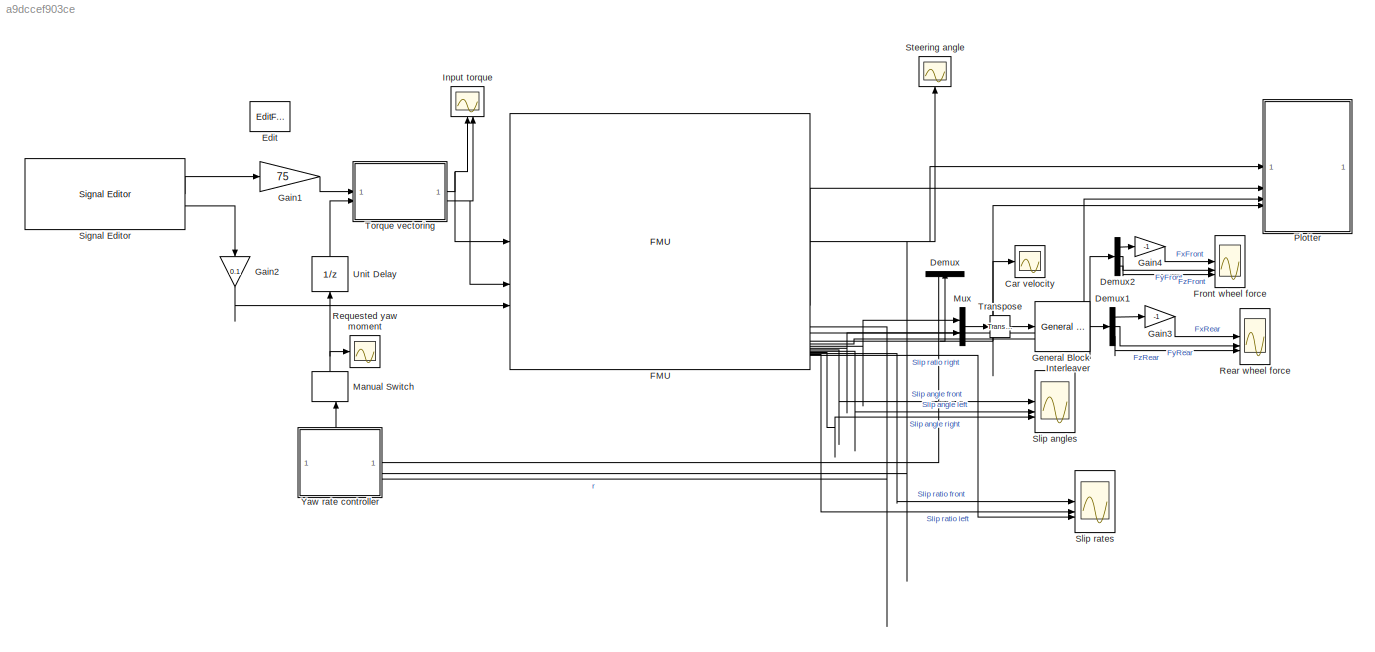
MODEL slx_a9dccef903ce
KIND model
CONFIG AbsTol = auto
CONFIG EnableMultiTasking = off
CONFIG FixedStep = auto
CONFIG MaxStep = auto
CONFIG MinStep = auto
CONFIG RelTol = 1e-3
CONFIG SampleTimeConstraint = Unconstrained
CONFIG SolverName = VariableStepAuto
CONFIG StartTime = 0.0
CONFIG StopTime = 25
BLOCK [Scope] Car velocity
  Floating = off
  NumInputPorts = 1
  ScopeSpecificationString = Simulink.scopes.TimeScopeBlockCfg('CurrentConfiguration', extmgr.ConfigurationSet(extmgr.Configuration('Core','General UI',true),extmgr.Configuration('Core','Source UI',true),extmgr.Configuration('Sources','WiredSimulink',true,'DataLoggingVariableName','ScopeData2'),extmgr.Configuration('Visuals','Time Domain',true,'SerializedDisplays',{struct('MinYLimReal','-15.53209','MaxYLimReal','25.33957','YL...<+1442ch>
BLOCK [Demux] Demux
  NameLocation = left
  Outputs = 2
BLOCK [Demux] Demux1
  Outputs = 3
BLOCK [Demux] Demux2
  Outputs = 3
BLOCK [EditField] Edit
  Alignment = Center
  AttributesFormatString = Initial speed
  LabelPosition = Hide
  ShowInitialText = on
BLOCK [FMU] FMU
  FMUCachedDialogLayout = {"Geometry":[468,174,698,530],"ParameterColumnsWidthConfig":"{\"columns\":[{\"name\":\"Parameter\",\"width\":352},{\"name\":\"Value\",\"width\":296},{\"name\":\"Unit\",\"width\":281},{\"name\":\"Description\",\"width\":366}]}","InputColumnsWidthConfig":[],"OutputColumnsWidthConfig":"{\"columns\":[{\"name\":\"Name\",\"width\":287},{\"name\":\"Visibility\",\"width\":79},{\"name\":\"Start\",\"width\"...<+84ch>
  FMUInitializeEnumObject = off
  FMUMode = ModelExchange
  FMUName = ThreeWheelVehicle3FMU.fmu
  MaskDisplay = disp('ThreeWheelVehicle3FMU');\nport_label('output',1,'outActualSteeringAngle');\nport_label('output',2,'outCarAcc');\nport_label('output',3,'outCarAngle');\nport_label('output',4,'outCarAngularAcc');\nport_label('output',5,'outCarAngularVelocity');\nport_label('output',6,'outCarPosition');\nport_label('output',7,'outCarSpeed');\nport_label('output',8,'outCarVelocity');\nport_label('output',9,'outForceFron...<+498ch>
  MaskPromptString = airResistanceLongitudinal|backLengthm|body2|c_rollFRolling resistance|c_rollLRolling resistance|c_rollRRolling resistance|dragCoefAir drag coefficient|front|front2|frontLengthm|frontTrail|frontWheel|gm/s2 Gravity|gearRatio|inertiaBodykgm2|inertiaWheelF|inertiaWheelL|inertiaWheelR|masskg|massCenterZm height to COM|muAF|muAL|muAR|muSF|muSL|muSR|neg|neg2|planarWorld|positionPhi|rear|rearLeft|rearLeft...<+2735ch>
  MaskType = ThreeWheelVehicle3FMU [Model Exchange, v2.0]
  MultithreadedSim = off
  airResistanceLongitudinal = struct('r',[0.0,1.0],'rho',1.18)
  backLength = Lr
  body2 = struct('I',1e-08,'m',0.1)
  body2_sphere_shapeType = sphere
  body_sphere_shapeType = sphere
  c_rollF = rollResF
  c_rollL = rollResL
  c_rollR = rollResR
  dragCoef = dragCoeff
  front = struct('r',[0.0],'width',0.2)
  front2 = struct('r',[1e-10,0.0])
  front2_cylinder_shapeType = cylinder
  frontLength = Lf
  frontTrail = struct('r',[0.0,-0.1])
  frontTrail_cylinder_shapeType = cylinder
  frontWheel = struct('diameter',0.1,'r',[0.0,1.0],'v0_roll',0.1)
  frontWheel_cylinder_shapeType = cylinder
  frontWheel_rim1_shapeType = cylinder
  frontWheel_rim2_shapeType = cylinder
  front_cylinder_shapeType = cylinder
  g = g
  gearRatio = gearRatio
  inertiaBody = Izz
  inertiaWheelF = inertiaF
  inertiaWheelL = inertiaL
  inertiaWheelR = inertiaR
  mass = mass
  massCenterZ = h
  muAF = muAF
  muAL = muAL
  muAR = muAR
  muSF = muSF
  muSL = muSL
  muSR = muSR
  neg = struct('k',-1.0)
  neg2 = struct('k',-1.0)
  planarWorld = struct('constantGravity',[0.0,0.0],'defaultFrameDiameterFraction',40.0,'defaultN_to_m',1000.0,'defaultNm_to_m',1000.0,'defaultSpecularCoefficient',0.7,'defaultWidthFraction',20.0,'defaultZPosition',0.0,'gravityArrowTail',[0.0,0.0],'nominalLength',1.0)
  planarWorld_label1 = x
  planarWorld_label2 = y
  positionPhi = struct('f_crit',50.0)
  rear = struct('r',[0.0],'width',0.2)
  rearLeft = struct('r',[0,0.0])
  rearLeftWheel = struct('diameter',0.1,'r',[0.0,1.0],'v0_roll',0.1)
  rearLeftWheel_cylinder_shapeType = cylinder
  rearLeftWheel_rim1_shapeType = cylinder
  rearLeftWheel_rim2_shapeType = cylinder
  rearLeft_cylinder_shapeType = cylinder
  rearRight = struct('r',[0,0.0])
  rearRightWheel = struct('diameter',0.1,'r',[0.0,1.0],'v0_roll',0.1)
  rearRightWheel_cylinder_shapeType = cylinder
  rearRightWheel_rim1_shapeType = cylinder
  rearRightWheel_rim2_shapeType = cylinder
  rearRight_cylinder_shapeType = cylinder
  rear_cylinder_shapeType = cylinder
  revolute_cylinder_shapeType = cylinder
  sAdF = sAdF
  sAdL = sAdL
  sAdR = sAdR
  sSlF = sSlF
  sSlL = sSlL
  sSlR = sSlR
  speedStart = 1
  turnRadiusMAX = 1000.0
  vAdF = vAdF
  vAdL = vAdL
  vAdR = vAdR
  vSlF = vSlF
  vSlL = vSlL
  vSlR = vSlR
  vehicleFrontArea = 1.5
  vehicleWidth = rearTrackWidth
  wheelRadiusF = wheelRadiusF
  wheelRadiusL = wheelRadiusL
  wheelRadiusR = wheelRadiusR
BLOCK [Scope] Front wheel force
  Floating = off
  NumInputPorts = 3
  ScopeSpecificationString = Simulink.scopes.TimeScopeBlockCfg('CurrentConfiguration', extmgr.ConfigurationSet(extmgr.Configuration('Core','General UI',true),extmgr.Configuration('Core','Source UI',true),extmgr.Configuration('Sources','WiredSimulink',true,'DataLoggingVariableName','ScopeData3'),extmgr.Configuration('Visuals','Time Domain',true,'SerializedDisplays',{struct('MinYLimReal','-37.12635','MaxYLimReal','4.12515','YLa...<+2761ch>
BLOCK [Gain] Gain1
  Gain = 75
BLOCK [Gain] Gain2
  Gain = 0.1
  NameLocation = left
BLOCK [Gain] Gain3
  Gain = -1
BLOCK [Gain] Gain4
  Gain = -1
BLOCK [Reference] General Block Interleaver  REF=commblkintrlv2/General Block
Interleaver
  SourceBlock = commblkintrlv2/General Block\nInterleaver
  SourceType = General Block Interleaver
  StatePerturbationForJacobian = 1.0e-05
BLOCK [Scope] Input torque
  Floating = off
  NameLocation = right
  NumInputPorts = 2
  ScopeSpecificationString = Simulink.scopes.TimeScopeBlockCfg('CurrentConfiguration', extmgr.ConfigurationSet(extmgr.Configuration('Core','General UI',true),extmgr.Configuration('Core','Source UI',true),extmgr.Configuration('Sources','WiredSimulink',true,'DataLoggingVariableName','ScopeData1'),extmgr.Configuration('Visuals','Time Domain',true,'SerializedDisplays',{struct('MinYLimReal','-12.06915','MaxYLimReal','32.06915','YL...<+1467ch>
BLOCK [ManualSwitch] Manual Switch
  NameLocation = right
BLOCK [Mux] Mux
  DisplayOption = bar
  Inputs = 2
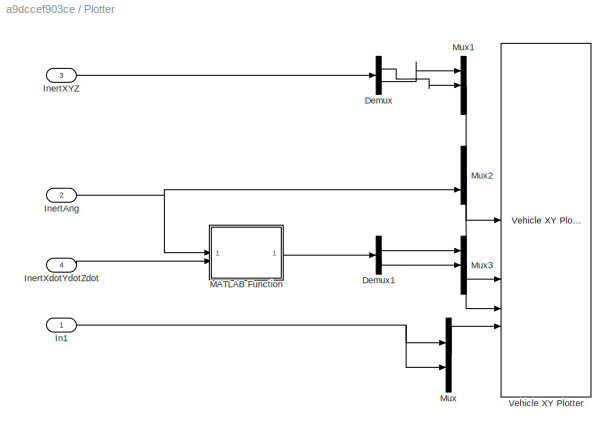
BLOCK [SubSystem] Plotter
BLOCK [Demux] Plotter/Demux
  Outputs = 2
BLOCK [Demux] Plotter/Demux1
  Outputs = 2
BLOCK [Inport] Plotter/In1
BLOCK [Inport] Plotter/InertAng
  Port = 2
BLOCK [Inport] Plotter/InertXYZ
  NameLocation = top
  Port = 3
BLOCK [Inport] Plotter/InertXdotYdotZdot
  Port = 4
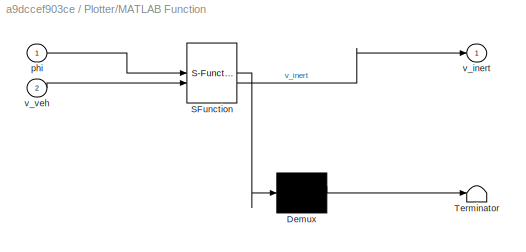
BLOCK [SubSystem] Plotter/MATLAB Function
  ErrorFcn = Stateflow.Translate.translate
  PermitHierarchicalResolution = ExplicitOnly
  SFBlockType = MATLAB Function
  TreatAsAtomicUnit = on
BLOCK [Demux] Plotter/MATLAB Function/ Demux 
  Outputs = 1
BLOCK [S-Function] Plotter/MATLAB Function/ SFunction 
  EnableBusSupport = on
  FunctionName = sf_sfun
  PortCounts = [2 2]
  SFcnIsStateOwnerBlock = off
  SFunctionDeploymentMode = off
  Tag = Stateflow S-Function 2
BLOCK [Terminator] Plotter/MATLAB Function/ Terminator 
BLOCK [Inport] Plotter/MATLAB Function/phi
BLOCK [Outport] Plotter/MATLAB Function/v_inert
BLOCK [Inport] Plotter/MATLAB Function/v_veh
  Port = 2
BLOCK [Mux] Plotter/Mux
  DisplayOption = bar
BLOCK [Mux] Plotter/Mux1
  DisplayOption = bar
  Inputs = 3
BLOCK [Mux] Plotter/Mux2
  DisplayOption = bar
  Inputs = 3
BLOCK [Mux] Plotter/Mux3
  DisplayOption = bar
  Inputs = 3
BLOCK [Reference] Plotter/Vehicle XY Plotter  REF=vehdynlibviscommon/Vehicle XY Plot Configuration
  SourceBlock = vehdynlibviscommon/Vehicle XY Plot Configuration
  SourceType = Vehicle XY Plotter
BLOCK [Scope] Rear wheel force
  Floating = off
  NumInputPorts = 3
  ScopeSpecificationString = Simulink.scopes.TimeScopeBlockCfg('CurrentConfiguration', extmgr.ConfigurationSet(extmgr.Configuration('Core','General UI',true),extmgr.Configuration('Core','Source UI',true),extmgr.Configuration('Sources','WiredSimulink',true,'DataLoggingVariableName','RearForce','DataLogging',true),extmgr.Configuration('Visuals','Time Domain',true,'SerializedDisplays',{struct('MinYLimReal','-1843.05905','MaxYLim...<+2763ch>
BLOCK [Scope] Requested yaw moment
  Floating = off
  NameLocation = right
  NumInputPorts = 1
  ScopeSpecificationString = Simulink.scopes.TimeScopeBlockCfg('CurrentConfiguration', extmgr.ConfigurationSet(extmgr.Configuration('Core','General UI',true),extmgr.Configuration('Core','Source UI',true),extmgr.Configuration('Sources','WiredSimulink',true,'DataLoggingVariableName','ScopeData3'),extmgr.Configuration('Visuals','Time Domain',true,'SerializedDisplays',{struct('MinYLimReal','-1.00000','MaxYLimReal','1.00000','YLab...<+1372ch>
BLOCK [Reference] Signal Editor  REF=SignalEditorBlockLib/Signal Editor
  LibrarySourceBlock = simulink/Sources/Signal Editor
  SourceBlock = SignalEditorBlockLib/Signal Editor
  SourceType = SignalEditor
  UserDataPersistent = on
BLOCK [Scope] Slip angles
  Floating = off
  NumInputPorts = 3
  ScopeSpecificationString = Simulink.scopes.TimeScopeBlockCfg('CurrentConfiguration', extmgr.ConfigurationSet(extmgr.Configuration('Core','General UI',true),extmgr.Configuration('Core','Source UI',true),extmgr.Configuration('Sources','WiredSimulink',true,'DataLoggingVariableName','ScopeData4'),extmgr.Configuration('Visuals','Time Domain',true,'SerializedDisplays',{struct('MinYLimReal','-1.95933','MaxYLimReal','1.96285','YLab...<+2752ch>
BLOCK [Scope] Slip rates
  Floating = off
  NumInputPorts = 3
  ScopeSpecificationString = Simulink.scopes.TimeScopeBlockCfg('CurrentConfiguration', extmgr.ConfigurationSet(extmgr.Configuration('Core','General UI',true),extmgr.Configuration('Core','Source UI',true),extmgr.Configuration('Sources','WiredSimulink',true,'DataLoggingVariableName','SlipRatio','DataLogging',true),extmgr.Configuration('Visuals','Time Domain',true,'SerializedDisplays',{struct('MinYLimReal','-0.05121','MaxYLimRea...<+2099ch>
BLOCK [Scope] Steering angle
  Floating = off
  NameLocation = right
  NumInputPorts = 1
  ScopeSpecificationString = Simulink.scopes.TimeScopeBlockCfg('CurrentConfiguration', extmgr.ConfigurationSet(extmgr.Configuration('Core','General UI',true),extmgr.Configuration('Core','Source UI',true),extmgr.Configuration('Sources','WiredSimulink',true,'DataLoggingVariableName','ScopeData1'),extmgr.Configuration('Visuals','Time Domain',true,'SerializedDisplays',{struct('MinYLimReal','-0.00012','MaxYLimReal','0.00113','YLab...<+1396ch>
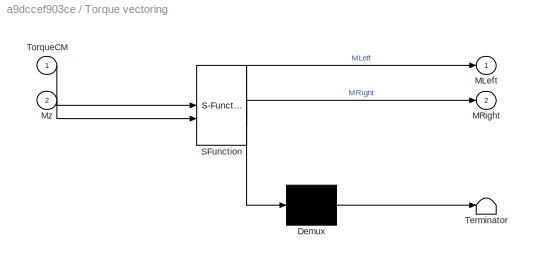
BLOCK [SubSystem] Torque vectoring
  ErrorFcn = Stateflow.Translate.translate
  PermitHierarchicalResolution = ExplicitOnly
  SFBlockType = MATLAB Function
  TreatAsAtomicUnit = on
BLOCK [Demux] Torque vectoring/ Demux 
  Outputs = 1
BLOCK [S-Function] Torque vectoring/ SFunction 
  EnableBusSupport = on
  FunctionName = sf_sfun
  Parameters = gearRatio,rearTrackWidth,wheelRadiusL
  PortCounts = [2 3]
  SFcnIsStateOwnerBlock = off
  SFunctionDeploymentMode = off
  Tag = Stateflow S-Function 1
BLOCK [Terminator] Torque vectoring/ Terminator 
BLOCK [Outport] Torque vectoring/MLeft
BLOCK [Outport] Torque vectoring/MRight
  Port = 2
BLOCK [Inport] Torque vectoring/Mz
  Port = 2
BLOCK [Inport] Torque vectoring/TorqueCM
BLOCK [Reference] Transpose  REF=matrix_library/Transpose
  LibrarySourceBlock = simulink/Matrix\nOperations/Transpose
  SourceBlock = matrix_library/Transpose
  SourceType = Transpose
BLOCK [UnitDelay] Unit Delay
  HasFrameUpgradeWarning = on
  NameLocation = right
  SampleTime = 0.001
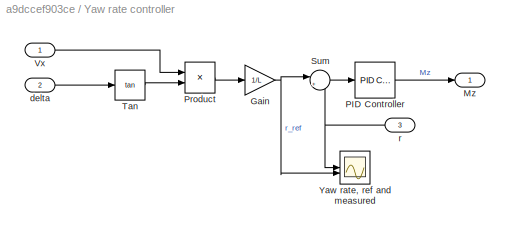
BLOCK [SubSystem] Yaw rate controller
  PortSchema = {"entries":[{"content":{"sides":[{"content":{},"type":"ConnectorPlacement.EquallySpacedRectSide","uuid":"857998bb-17b2-4c26-a88e-7a272ab33241"},{"content":{"connectorIds":["In1","In2","In3"],"side":"RIGHT"},"type":"ConnectorPlacement.EquallySpacedRectSide","uuid":"e6bac797-4ab7-4d5a-9049-404e840be7e3"},{"content":{"connectorIds":["Out1"],"side":"TOP"},"type":"ConnectorPlacement.EquallySpacedRectSi...<+235ch>
BLOCK [Gain] Yaw rate controller/Gain
  Gain = 1/L
BLOCK [Outport] Yaw rate controller/Mz
BLOCK [Reference] Yaw rate controller/PID Controller  REF=slpidlib/PID Controller
  LibrarySourceBlock = simulink/Continuous/PID Controller
  SourceBlock = slpidlib/PID Controller
  SourceType = PID 1dof
BLOCK [Product] Yaw rate controller/Product
BLOCK [Sum] Yaw rate controller/Sum
  Inputs = |+-
BLOCK [Trigonometry] Yaw rate controller/Tan
  Operator = tan
BLOCK [Inport] Yaw rate controller/Vx
BLOCK [Scope] Yaw rate controller/Yaw rate, ref and measured
  Floating = off
  NameLocation = right
  NumInputPorts = 2
  ScopeSpecificationString = Simulink.scopes.TimeScopeBlockCfg('CurrentConfiguration', extmgr.ConfigurationSet(extmgr.Configuration('Core','General UI',true),extmgr.Configuration('Core','Source UI',true),extmgr.Configuration('Sources','WiredSimulink',true,'DataLoggingVariableName','ScopeData2'),extmgr.Configuration('Visuals','Time Domain',true,'SerializedDisplays',{struct('MinYLimReal','-0.71346','MaxYLimReal','2.91441','YLab...<+1670ch>
BLOCK [Inport] Yaw rate controller/delta
  Port = 2
BLOCK [Inport] Yaw rate controller/r
  Port = 3
LINE Demux1:1 -> Gain3:1
LINE Demux1:2 -> Rear wheel force:2
LINE Demux1:3 -> Rear wheel force:3
LINE Demux2:1 -> Gain4:1
LINE Demux2:2 -> Front wheel force:2
LINE Demux2:3 -> Front wheel force:3
LINE Demux:1 -> Yaw rate controller:1
NET FMU:1 -> Plotter:1, Steering angle:1, Yaw rate controller:2
LINE FMU:10 -> Mux:1
LINE FMU:11 -> Mux:2
LINE FMU:12 -> Slip angles:1
LINE FMU:13 -> Slip angles:2
LINE FMU:14 -> Slip angles:3
LINE FMU:15 -> Slip rates:1
LINE FMU:16 -> Slip rates:2
LINE FMU:17 -> Slip rates:3
LINE FMU:3 -> Plotter:2
LINE FMU:5 -> Yaw rate controller:3
LINE FMU:6 -> Plotter:3
NET FMU:8 -> Car velocity:1, Demux:1, Plotter:4
LINE FMU:9 -> Demux2:1
LINE Gain1:1 -> Torque vectoring:1
LINE Gain2:1 -> FMU:3
LINE Gain3:1 -> Rear wheel force:1
LINE Gain4:1 -> Front wheel force:1
LINE General Block Interleaver:1 -> Demux1:1
NET Manual Switch:1 -> Requested yaw moment:1, Unit Delay:1
LINE Mux:1 -> Transpose:1
LINE Plotter/Demux1:1 -> Plotter/Mux3:1
LINE Plotter/Demux1:2 -> Plotter/Mux3:2
LINE Plotter/Demux:1 -> Plotter/Mux1:2
LINE Plotter/Demux:2 -> Plotter/Mux1:1
NET Plotter/In1:1 -> Plotter/Mux:1, Plotter/Mux:2
NET Plotter/InertAng:1 -> Plotter/MATLAB Function:1, Plotter/Mux2:3
LINE Plotter/InertXYZ:1 -> Plotter/Demux:1
LINE Plotter/InertXdotYdotZdot:1 -> Plotter/MATLAB Function:2
LINE Plotter/MATLAB Function:1 -> Plotter/Demux1:1
LINE Plotter/Mux1:1 -> Plotter/Vehicle XY Plotter:1
LINE Plotter/Mux2:1 -> Plotter/Vehicle XY Plotter:2
LINE Plotter/Mux3:1 -> Plotter/Vehicle XY Plotter:3
LINE Plotter/Mux:1 -> Plotter/Vehicle XY Plotter:4
LINE Signal Editor:1 -> Gain1:1
LINE Signal Editor:2 -> Gain2:1
NET Torque vectoring:1 -> FMU:1, Input torque:1
NET Torque vectoring:2 -> FMU:2, Input torque:2
LINE Transpose:1 -> General Block Interleaver:1
LINE Unit Delay:1 -> Torque vectoring:2
NET Yaw rate controller/Gain:1 -> Yaw rate controller/Sum:1, Yaw rate controller/Yaw rate, ref and measured:2
LINE Yaw rate controller/PID Controller:1 -> Yaw rate controller/Mz:1
LINE Yaw rate controller/Product:1 -> Yaw rate controller/Gain:1
LINE Yaw rate controller/Sum:1 -> Yaw rate controller/PID Controller:1
LINE Yaw rate controller/Tan:1 -> Yaw rate controller/Product:2
LINE Yaw rate controller/Vx:1 -> Yaw rate controller/Product:1
LINE Yaw rate controller/delta:1 -> Yaw rate controller/Tan:1
NET Yaw rate controller/r:1 -> Yaw rate controller/Sum:2, Yaw rate controller/Yaw rate, ref and measured:1
LINE Yaw rate controller:1 -> Manual Switch:2
note: NET lines group one-source signal fan-out (src -> all destinations, sorted); 1:1 wires keep LINE
CHART Torque vectoring states=1 transitions=1
  STATE_LABEL 'eML_blk_kernel()'
  STATE_LABEL 'SCRIPT:\nfunction [MLeft, MRight] = fcn(TorqueCM, Mz, gearRatio, wheelRadiusL, rearTrackWidth)\n\nMDiff = wheelRadiusL * Mz / (gearRatio * rearTrackWidth);\nMLeft = TorqueCM + MDiff;\nMRight = TorqueCM - MDiff;'
CHART Plotter/MATLAB Function states=1 transitions=1
  STATE_LABEL 'eML_blk_kernel()'
  STATE_LABEL 'SCRIPT:\nfunction v_inert  = fcn(phi, v_veh)\n\nR = [cos(phi), -sin(phi); \n     sin(phi), cos(phi)];\n\nv_inert = R * v_veh;'
CHART  states=0 transitions=0
CHART  states=0 transitions=0
